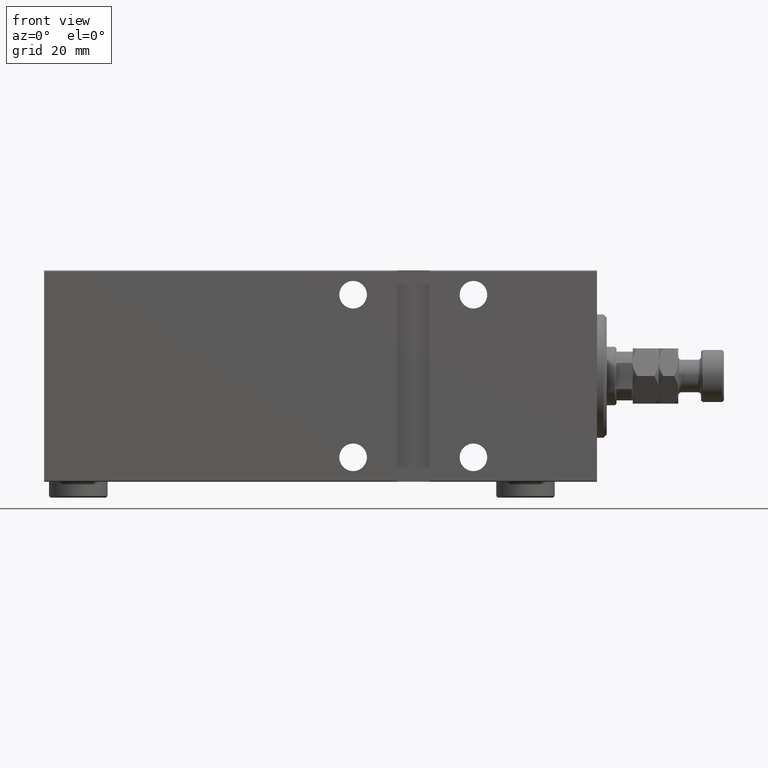
[diagram: clean part render]
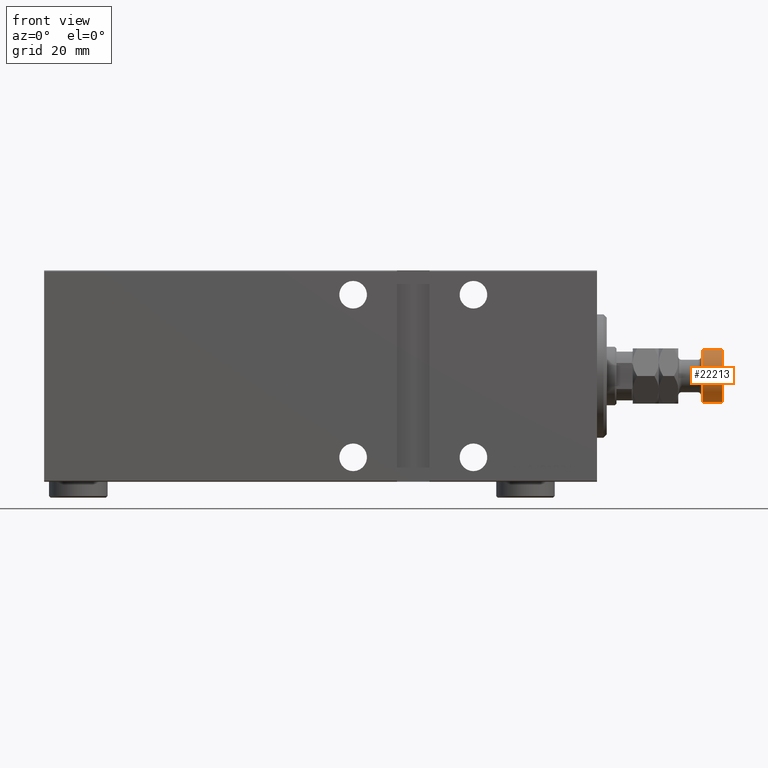
[diagram: same view with one face highlighted and labeled with its STEP entity id]
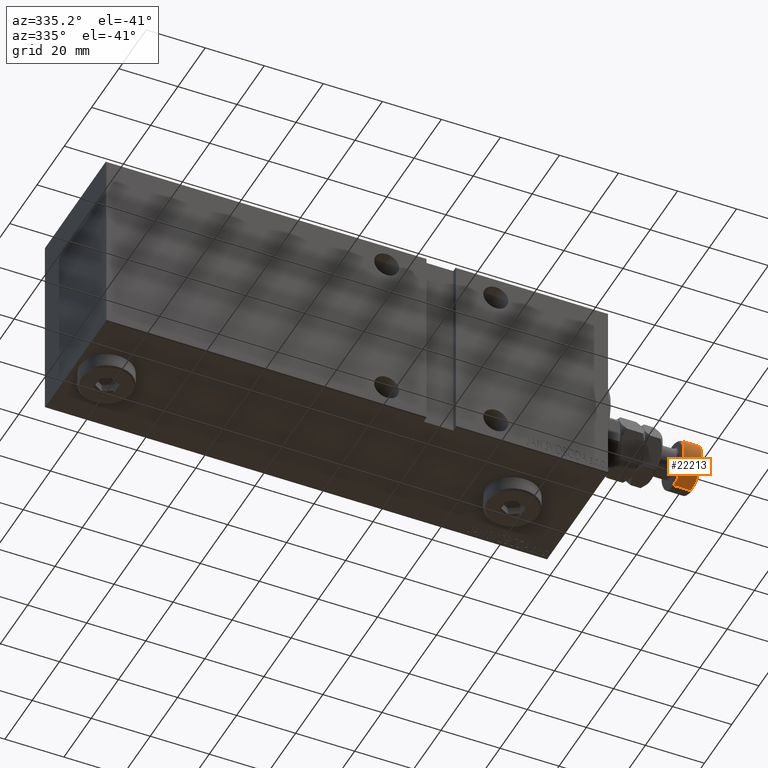
[diagram: same view with one face highlighted and labeled with its STEP entity id]
A machine part, front view. The second image highlights one B-rep face of the part: STEP entity #22213.
A second angle (auxiliary view) of the same face is appended — the face is thin or edge-on in the first view.
In plain terms, the highlighted cylindrical surface (edge-blend (fillet) strip) has radius 8 mm, axis along (-1, -0, 0).
Its self-contained STEP definition (entity closure, byte-faithful):
#139 = AXIS2_PLACEMENT_3D ( 'NONE', #27909, #10396, #17852 ) ;
#623 = CARTESIAN_POINT ( 'NONE',  ( -8.000000000000000000, 0.000000000000000000, 27.50000000000000000 ) ) ;
#751 = VERTEX_POINT ( 'NONE', #32424 ) ;
#3804 = ORIENTED_EDGE ( 'NONE', *, *, #22793, .F. ) ;
#5873 = ORIENTED_EDGE ( 'NONE', *, *, #8492, .T. ) ;
#8492 = EDGE_CURVE ( 'NONE', #42438, #751, #30540, .T. ) ;
#8922 = CARTESIAN_POINT ( 'NONE',  ( 8.000000000000000000, 9.797174393178825657E-16, 28.00000000000000000 ) ) ;
#9275 = CARTESIAN_POINT ( 'NONE',  ( 0.000000000000000000, 0.000000000000000000, 28.00000000000000000 ) ) ;
#10003 = VECTOR ( 'NONE', #41137, 1000.000000000000000 ) ;
#10396 = DIRECTION ( 'NONE',  ( 0.000000000000000000, 0.000000000000000000, -1.000000000000000000 ) ) ;
#10439 = AXIS2_PLACEMENT_3D ( 'NONE', #11022, #32273, #28989 ) ;
#11022 = CARTESIAN_POINT ( 'NONE',  ( 0.000000000000000000, 0.000000000000000000, 21.50000000000000711 ) ) ;
#11033 = DIRECTION ( 'NONE',  ( -0.000000000000000000, -0.000000000000000000, -1.000000000000000000 ) ) ;
#11421 = VECTOR ( 'NONE', #11033, 1000.000000000000000 ) ;
#14263 = ORIENTED_EDGE ( 'NONE', *, *, #29414, .T. ) ;
#17852 = DIRECTION ( 'NONE',  ( 1.000000000000000000, 0.000000000000000000, 0.000000000000000000 ) ) ;
#22213 = ADVANCED_FACE ( 'NONE', ( #45002 ), #30506, .T. ) ;
#22793 = EDGE_CURVE ( 'NONE', #37686, #751, #26876, .T. ) ;
#24454 = EDGE_CURVE ( 'NONE', #37686, #30488, #29177, .T. ) ;
#26876 = LINE ( 'NONE', #8922, #10003 ) ;
#27230 = DIRECTION ( 'NONE',  ( -0.000000000000000000, -0.000000000000000000, -1.000000000000000000 ) ) ;
#27645 = EDGE_LOOP ( 'NONE', ( #3804, #38574, #14263, #5873 ) ) ;
#27909 = CARTESIAN_POINT ( 'NONE',  ( 0.000000000000000000, 0.000000000000000000, 27.50000000000000000 ) ) ;
#28321 = LINE ( 'NONE', #32283, #11421 ) ;
#28989 = DIRECTION ( 'NONE',  ( 1.000000000000000000, 0.000000000000000000, 0.000000000000000000 ) ) ;
#29177 = CIRCLE ( 'NONE', #139, 8.000000000000000000 ) ;
#29414 = EDGE_CURVE ( 'NONE', #30488, #42438, #28321, .T. ) ;
#30488 = VERTEX_POINT ( 'NONE', #623 ) ;
#30506 = CYLINDRICAL_SURFACE ( 'NONE', #43556, 8.000000000000000000 ) ;
#30540 = CIRCLE ( 'NONE', #10439, 8.000000000000000000 ) ;
#32273 = DIRECTION ( 'NONE',  ( -0.000000000000000000, -0.000000000000000000, 1.000000000000000000 ) ) ;
#32283 = CARTESIAN_POINT ( 'NONE',  ( -8.000000000000000000, 0.000000000000000000, 28.00000000000000000 ) ) ;
#32424 = CARTESIAN_POINT ( 'NONE',  ( 8.000000000000000000, 9.797174393178825657E-16, 21.50000000000000711 ) ) ;
#34255 = DIRECTION ( 'NONE',  ( -1.000000000000000000, 0.000000000000000000, 0.000000000000000000 ) ) ;
#37686 = VERTEX_POINT ( 'NONE', #41361 ) ;
#38574 = ORIENTED_EDGE ( 'NONE', *, *, #24454, .T. ) ;
#40089 = CARTESIAN_POINT ( 'NONE',  ( -8.000000000000000000, 0.000000000000000000, 21.50000000000000711 ) ) ;
#41137 = DIRECTION ( 'NONE',  ( -0.000000000000000000, -0.000000000000000000, -1.000000000000000000 ) ) ;
#41361 = CARTESIAN_POINT ( 'NONE',  ( 8.000000000000000000, 9.797174393178825657E-16, 27.50000000000000000 ) ) ;
#42438 = VERTEX_POINT ( 'NONE', #40089 ) ;
#43556 = AXIS2_PLACEMENT_3D ( 'NONE', #9275, #27230, #34255 ) ;
#45002 = FACE_OUTER_BOUND ( 'NONE', #27645, .T. ) ;